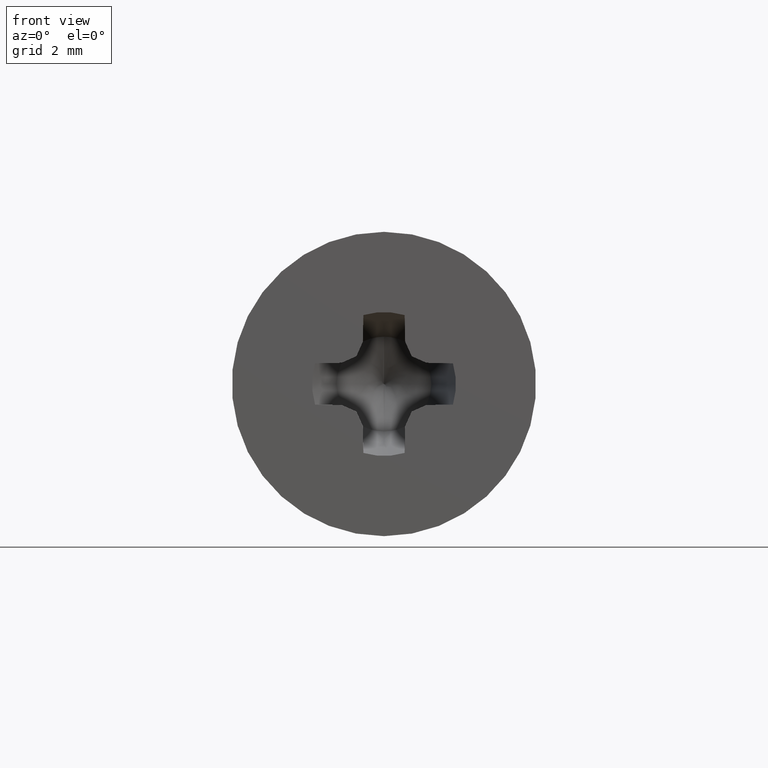
[diagram: clean part render]
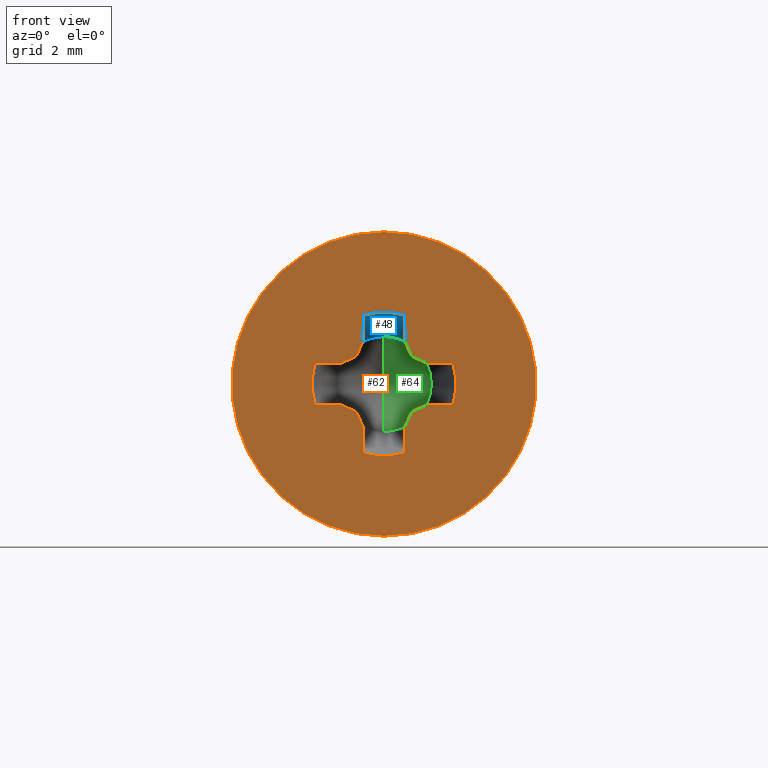
[diagram: same view with three faces highlighted in distinct colors, each labeled with its STEP entity id]
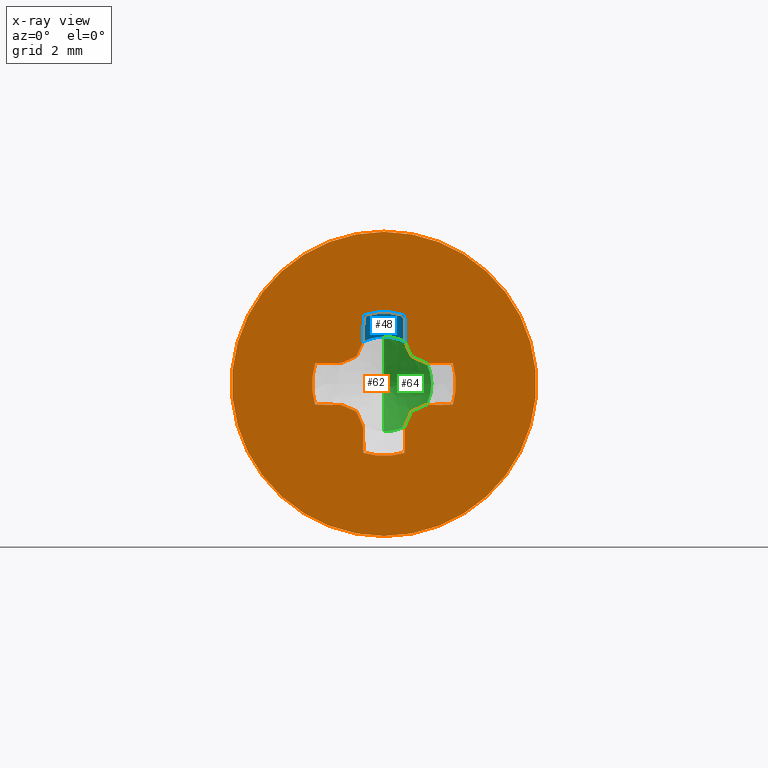
[diagram: x-ray of the same camera — body ghosted, the three highlighted faces saturated]
A machine part, front view with three faces highlighted in distinct colors.
The next image is the same camera in x-ray (body ghosted, the three faces saturated) — at least one of them is partly hidden behind the body in this view.
Their STEP definitions:

[orange] entity #62 — the highlighted planar face has unit normal (-0, 1, 0).
#62=ADVANCED_FACE('',(#291,#292),#290,.F.);
#290=PLANE('',#483);
#291=FACE_OUTER_BOUND('',#484,.T.);
#292=FACE_BOUND('',#485,.T.);
#480=CARTESIAN_POINT('',(-5.71576766498E+00,-7.00000000000E-01,-3.57500000000E+00));
#481=DIRECTION('',(-0.00000000000E+00,1.00000000000E+00,0.00000000000E+00));
#482=DIRECTION('',(0.00000000000E+00,-0.00000000000E+00,1.00000000000E+00));
#483=AXIS2_PLACEMENT_3D('',#480,#481,#482);
#484=EDGE_LOOP('',(#608,#609));
#485=EDGE_LOOP('',(#610,#611,#612,#613,#614,#615,#616,#617,#618,#619,#620,#621,#622,#623,#624,#625,#626,#627,#628,#629));
#608=ORIENTED_EDGE('',*,*,#724,.T.);
#609=ORIENTED_EDGE('',*,*,#725,.T.);
#610=ORIENTED_EDGE('',*,*,#696,.F.);
#611=ORIENTED_EDGE('',*,*,#699,.F.);
#612=ORIENTED_EDGE('',*,*,#703,.F.);
#613=ORIENTED_EDGE('',*,*,#706,.F.);
#614=ORIENTED_EDGE('',*,*,#707,.F.);
#615=ORIENTED_EDGE('',*,*,#692,.F.);
#616=ORIENTED_EDGE('',*,*,#708,.F.);
#617=ORIENTED_EDGE('',*,*,#712,.F.);
#618=ORIENTED_EDGE('',*,*,#714,.F.);
#619=ORIENTED_EDGE('',*,*,#666,.F.);
#620=ORIENTED_EDGE('',*,*,#683,.F.);
#621=ORIENTED_EDGE('',*,*,#675,.F.);
#622=ORIENTED_EDGE('',*,*,#679,.F.);
#623=ORIENTED_EDGE('',*,*,#672,.F.);
#624=ORIENTED_EDGE('',*,*,#674,.F.);
#625=ORIENTED_EDGE('',*,*,#687,.F.);
#626=ORIENTED_EDGE('',*,*,#680,.F.);
#627=ORIENTED_EDGE('',*,*,#719,.F.);
#628=ORIENTED_EDGE('',*,*,#717,.F.);
#629=ORIENTED_EDGE('',*,*,#698,.F.);
#666=EDGE_CURVE('',#740,#733,#747,.T.);
#672=EDGE_CURVE('',#782,#768,#789,.T.);
#674=EDGE_CURVE('',#795,#782,#802,.T.);
#675=EDGE_CURVE('',#808,#809,#810,.T.);
#679=EDGE_CURVE('',#768,#808,#835,.T.);
#680=EDGE_CURVE('',#841,#842,#843,.T.);
#683=EDGE_CURVE('',#809,#740,#862,.T.);
#687=EDGE_CURVE('',#842,#795,#887,.T.);
#692=EDGE_CURVE('',#915,#894,#922,.T.);
#696=EDGE_CURVE('',#943,#929,#950,.T.);
#698=EDGE_CURVE('',#929,#956,#963,.T.);
#699=EDGE_CURVE('',#969,#943,#970,.T.);
#703=EDGE_CURVE('',#989,#969,#996,.T.);
#706=EDGE_CURVE('',#1008,#989,#1015,.T.);
#707=EDGE_CURVE('',#894,#1008,#1021,.T.);
#708=EDGE_CURVE('',#1027,#915,#1028,.T.);
#712=EDGE_CURVE('',#1047,#1027,#1054,.T.);
#714=EDGE_CURVE('',#733,#1047,#1066,.T.);
#717=EDGE_CURVE('',#956,#1073,#1086,.T.);
#719=EDGE_CURVE('',#1073,#841,#1098,.T.);
#724=EDGE_CURVE('',#1132,#1133,#1134,.T.);
#725=EDGE_CURVE('',#1133,#1132,#1140,.T.);
#733=VERTEX_POINT('',#1184);
#740=VERTEX_POINT('',#1188);
#747=LINE('',#1193,#1194);
#768=VERTEX_POINT('',#1207);
#782=VERTEX_POINT('',#1216);
#789=LINE('',#1220,#1221);
#795=VERTEX_POINT('',#1223);
#802=LINE('',#1228,#1229);
#808=VERTEX_POINT('',#1231);
#809=VERTEX_POINT('',#1232);
#810=LINE('',#1233,#1234);
#835=LINE('',#1248,#1249);
#841=VERTEX_POINT('',#1251);
#842=VERTEX_POINT('',#1252);
#843=LINE('',#1253,#1254);
#862=CIRCLE('',#1267,1.30000000000E+00);
#887=CIRCLE('',#1284,1.30000000000E+00);
#894=VERTEX_POINT('',#1286);
#915=VERTEX_POINT('',#1301);
#922=CIRCLE('',#1309,1.30000000000E+00);
#929=VERTEX_POINT('',#1311);
#943=VERTEX_POINT('',#1321);
#950=CIRCLE('',#1329,1.30000000000E+00);
#956=VERTEX_POINT('',#1330);
#963=LINE('',#1334,#1335);
#969=VERTEX_POINT('',#1337);
#970=LINE('',#1338,#1339);
#989=VERTEX_POINT('',#1349);
#996=LINE('',#1353,#1354);
#1008=VERTEX_POINT('',#1360);
#1015=LINE('',#1364,#1365);
#1021=LINE('',#1367,#1368);
#1027=VERTEX_POINT('',#1370);
#1028=LINE('',#1371,#1372);
#1047=VERTEX_POINT('',#1382);
#1054=LINE('',#1386,#1387);
#1066=LINE('',#1393,#1394);
#1073=VERTEX_POINT('',#1397);
#1086=LINE('',#1405,#1406);
#1098=LINE('',#1412,#1413);
#1132=VERTEX_POINT('',#1435);
#1133=VERTEX_POINT('',#1436);
#1134=CIRCLE('',#1440,2.75000000000E+00);
#1140=CIRCLE('',#1444,2.75000000000E+00);
#1184=CARTESIAN_POINT('',(-7.65735392644E-01,-7.00000000000E-01,-3.81326433417E-01));
#1188=CARTESIAN_POINT('',(-1.24535328831E+00,-7.00000000000E-01,-3.72954671907E-01));
#1193=CARTESIAN_POINT('',(-1.24535328831E+00,-7.00000000000E-01,-3.72954671907E-01));
#1194=VECTOR('',#1195,4.79690954921E-01);
#1195=DIRECTION('',(9.99847695156E-01,0.00000000000E+00,-1.74524064372E-02));
#1207=CARTESIAN_POINT('',(-4.99750525934E-01,-7.00000000000E-01,4.99750525934E-01));
#1216=CARTESIAN_POINT('',(-3.81326433417E-01,-7.00000000000E-01,7.65735392643E-01));
#1220=CARTESIAN_POINT('',(-3.81326433417E-01,-7.00000000000E-01,7.65735392643E-01));
#1221=VECTOR('',#1222,2.91156684634E-01);
#1222=DIRECTION('',(-4.06736643076E-01,0.00000000000E+00,-9.13545457643E-01));
#1223=CARTESIAN_POINT('',(-3.72954671907E-01,-7.00000000000E-01,1.24535328831E+00));
#1228=CARTESIAN_POINT('',(-3.72954671907E-01,-7.00000000000E-01,1.24535328831E+00));
#1229=VECTOR('',#1230,4.79690954922E-01);
#1230=DIRECTION('',(-1.74524064378E-02,0.00000000000E+00,-9.99847695156E-01));
#1231=CARTESIAN_POINT('',(-7.65735392644E-01,-7.00000000000E-01,3.81326433417E-01));
#1232=CARTESIAN_POINT('',(-1.24535328831E+00,-7.00000000000E-01,3.72954671907E-01));
#1233=CARTESIAN_POINT('',(-7.65735392644E-01,-7.00000000000E-01,3.81326433417E-01));
#1234=VECTOR('',#1235,4.79690954921E-01);
#1235=DIRECTION('',(-9.99847695156E-01,0.00000000000E+00,-1.74524064373E-02));
#1248=CARTESIAN_POINT('',(-4.99750525934E-01,-7.00000000000E-01,4.99750525934E-01));
#1249=VECTOR('',#1250,2.91156684634E-01);
#1250=DIRECTION('',(-9.13545457643E-01,0.00000000000E+00,-4.06736643075E-01));
#1251=CARTESIAN_POINT('',(3.81326433417E-01,-7.00000000000E-01,7.65735392643E-01));
#1252=CARTESIAN_POINT('',(3.72954671908E-01,-7.00000000000E-01,1.24535328831E+00));
#1253=CARTESIAN_POINT('',(3.81326433417E-01,-7.00000000000E-01,7.65735392643E-01));
#1254=VECTOR('',#1255,4.79690954922E-01);
#1255=DIRECTION('',(-1.74524064372E-02,0.00000000000E+00,9.99847695156E-01));
#1264=CARTESIAN_POINT('',(0.00000000000E+00,-7.00000000000E-01,0.00000000000E+00));
#1265=DIRECTION('',(0.00000000000E+00,-1.00000000000E+00,0.00000000000E+00));
#1266=DIRECTION('',(-0.00000000000E+00,-0.00000000000E+00,1.00000000000E+00));
#1267=AXIS2_PLACEMENT_3D('',#1264,#1265,#1266);
#1281=CARTESIAN_POINT('',(0.00000000000E+00,-7.00000000000E-01,0.00000000000E+00));
#1282=DIRECTION('',(0.00000000000E+00,-1.00000000000E+00,0.00000000000E+00));
#1283=DIRECTION('',(2.86888209160E-01,0.00000000000E+00,9.57964067930E-01));
#1284=AXIS2_PLACEMENT_3D('',#1281,#1282,#1283);
#1286=CARTESIAN_POINT('',(3.72954671907E-01,-7.00000000000E-01,-1.24535328831E+00));
#1301=CARTESIAN_POINT('',(-3.72954671907E-01,-7.00000000000E-01,-1.24535328831E+00));
#1306=CARTESIAN_POINT('',(0.00000000000E+00,-7.00000000000E-01,0.00000000000E+00));
#1307=DIRECTION('',(0.00000000000E+00,-1.00000000000E+00,0.00000000000E+00));
#1308=DIRECTION('',(-0.00000000000E+00,-0.00000000000E+00,1.00000000000E+00));
#1309=AXIS2_PLACEMENT_3D('',#1306,#1307,#1308);
#1311=CARTESIAN_POINT('',(1.24535328831E+00,-7.00000000000E-01,3.72954671907E-01));
#1321=CARTESIAN_POINT('',(1.24535328831E+00,-7.00000000000E-01,-3.72954671907E-01));
#1326=CARTESIAN_POINT('',(0.00000000000E+00,-7.00000000000E-01,0.00000000000E+00));
#1327=DIRECTION('',(0.00000000000E+00,-1.00000000000E+00,0.00000000000E+00));
#1328=DIRECTION('',(-0.00000000000E+00,-0.00000000000E+00,1.00000000000E+00));
#1329=AXIS2_PLACEMENT_3D('',#1326,#1327,#1328);
#1330=CARTESIAN_POINT('',(7.65735392644E-01,-7.00000000000E-01,3.81326433417E-01));
#1334=CARTESIAN_POINT('',(1.24535328831E+00,-7.00000000000E-01,3.72954671907E-01));
#1335=VECTOR('',#1336,4.79690954921E-01);
#1336=DIRECTION('',(-9.99847695156E-01,0.00000000000E+00,1.74524064368E-02));
#1337=CARTESIAN_POINT('',(7.65735392644E-01,-7.00000000000E-01,-3.81326433417E-01));
#1338=CARTESIAN_POINT('',(7.65735392644E-01,-7.00000000000E-01,-3.81326433417E-01));
#1339=VECTOR('',#1340,4.79690954921E-01);
#1340=DIRECTION('',(9.99847695156E-01,0.00000000000E+00,1.74524064373E-02));
#1349=CARTESIAN_POINT('',(4.99750525934E-01,-7.00000000000E-01,-4.99750525934E-01));
#1353=CARTESIAN_POINT('',(4.99750525934E-01,-7.00000000000E-01,-4.99750525934E-01));
#1354=VECTOR('',#1355,2.91156684634E-01);
#1355=DIRECTION('',(9.13545457643E-01,0.00000000000E+00,4.06736643076E-01));
#1360=CARTESIAN_POINT('',(3.81326433417E-01,-7.00000000000E-01,-7.65735392644E-01));
#1364=CARTESIAN_POINT('',(3.81326433417E-01,-7.00000000000E-01,-7.65735392644E-01));
#1365=VECTOR('',#1366,2.91156684634E-01);
#1366=DIRECTION('',(4.06736643076E-01,0.00000000000E+00,9.13545457642E-01));
#1367=CARTESIAN_POINT('',(3.72954671907E-01,-7.00000000000E-01,-1.24535328831E+00));
#1368=VECTOR('',#1369,4.79690954921E-01);
#1369=DIRECTION('',(1.74524064372E-02,0.00000000000E+00,9.99847695156E-01));
#1370=CARTESIAN_POINT('',(-3.81326433417E-01,-7.00000000000E-01,-7.65735392644E-01));
#1371=CARTESIAN_POINT('',(-3.81326433417E-01,-7.00000000000E-01,-7.65735392644E-01));
#1372=VECTOR('',#1373,4.79690954922E-01);
#1373=DIRECTION('',(1.74524064372E-02,0.00000000000E+00,-9.99847695156E-01));
#1382=CARTESIAN_POINT('',(-4.99750525934E-01,-7.00000000000E-01,-4.99750525934E-01));
#1386=CARTESIAN_POINT('',(-4.99750525934E-01,-7.00000000000E-01,-4.99750525934E-01));
#1387=VECTOR('',#1388,2.91156684634E-01);
#1388=DIRECTION('',(4.06736643076E-01,0.00000000000E+00,-9.13545457643E-01));
#1393=CARTESIAN_POINT('',(-7.65735392644E-01,-7.00000000000E-01,-3.81326433417E-01));
#1394=VECTOR('',#1395,2.91156684634E-01);
#1395=DIRECTION('',(9.13545457643E-01,0.00000000000E+00,-4.06736643076E-01));
#1397=CARTESIAN_POINT('',(4.99750525934E-01,-7.00000000000E-01,4.99750525934E-01));
#1405=CARTESIAN_POINT('',(7.65735392644E-01,-7.00000000000E-01,3.81326433417E-01));
#1406=VECTOR('',#1407,2.91156684634E-01);
#1407=DIRECTION('',(-9.13545457643E-01,0.00000000000E+00,4.06736643075E-01));
#1412=CARTESIAN_POINT('',(4.99750525934E-01,-7.00000000000E-01,4.99750525934E-01));
#1413=VECTOR('',#1414,2.91156684634E-01);
#1414=DIRECTION('',(-4.06736643076E-01,0.00000000000E+00,9.13545457643E-01));
#1435=CARTESIAN_POINT('',(0.00000000000E+00,-7.00000000000E-01,-2.75000000000E+00));
#1436=CARTESIAN_POINT('',(1.48029736617E-16,-7.00000000000E-01,2.75000000000E+00));
#1437=CARTESIAN_POINT('',(0.00000000000E+00,-7.00000000000E-01,0.00000000000E+00));
#1438=DIRECTION('',(0.00000000000E+00,-1.00000000000E+00,-0.00000000000E+00));
#1439=DIRECTION('',(-1.22460635382E-16,0.00000000000E+00,-1.00000000000E+00));
#1440=AXIS2_PLACEMENT_3D('',#1437,#1438,#1439);
#1441=CARTESIAN_POINT('',(0.00000000000E+00,-7.00000000000E-01,0.00000000000E+00));
#1442=DIRECTION('',(0.00000000000E+00,-1.00000000000E+00,-0.00000000000E+00));
#1443=DIRECTION('',(-1.22460635382E-16,0.00000000000E+00,-1.00000000000E+00));
#1444=AXIS2_PLACEMENT_3D('',#1441,#1442,#1443);

[blue] entity #48 — the highlighted face is a freeform B-spline surface patch.
#48=ADVANCED_FACE('',(#150),#149,.F.);
#149=( BOUNDED_SURFACE() B_SPLINE_SURFACE( 2,1,((#403,#404),(#405,#406),(#407,#408)), .UNSPECIFIED.,.F.,.F.,.F.) B_SPLINE_SURFACE_WITH_KNOTS((3,3),(2,2),(0.00000000000E+00,1.00000000000E+00),(0.00000000000E+00,1.00000000000E+00), .UNSPECIFIED. ) GEOMETRIC_REPRESENTATION_ITEM() RATIONAL_B_SPLINE_SURFACE(((1.00000000000E+00,1.00000000000E+00),(8.94749471779E-01,8.94749471779E-01),(1.00000000000E+00,1.00000000000E+00))) REPRESENTATION_ITEM('') SURFACE() );
#150=FACE_OUTER_BOUND('',#409,.T.);
#403=CARTESIAN_POINT('',(3.81921402533E-01,2.00126283588E-01,7.65103363488E-01));
#404=CARTESIAN_POINT('',(5.80745063328E-01,-7.00607308886E-01,1.16340691654E+00));
#405=CARTESIAN_POINT('',(5.91765175733E-05,2.00126283588E-01,9.55719904852E-01));
#406=CARTESIAN_POINT('',(8.99830965684E-05,-7.00607308886E-01,1.45325612282E+00));
#407=CARTESIAN_POINT('',(-3.81826651861E-01,2.00126283588E-01,7.65150653442E-01));
#408=CARTESIAN_POINT('',(-5.80600986602E-01,-7.00607308886E-01,1.16347882507E+00));
#409=EDGE_LOOP('',(#554,#555,#556,#557,#558));
#554=ORIENTED_EDGE('',*,*,#673,.F.);
#555=ORIENTED_EDGE('',*,*,#685,.F.);
#556=ORIENTED_EDGE('',*,*,#686,.F.);
#557=ORIENTED_EDGE('',*,*,#681,.F.);
#558=ORIENTED_EDGE('',*,*,#687,.T.);
#673=EDGE_CURVE('',#775,#795,#796,.T.);
#681=EDGE_CURVE('',#842,#849,#850,.T.);
#685=EDGE_CURVE('',#874,#775,#875,.T.);
#686=EDGE_CURVE('',#849,#874,#881,.T.);
#687=EDGE_CURVE('',#842,#795,#887,.T.);
#775=VERTEX_POINT('',#1211);
#795=VERTEX_POINT('',#1223);
#796=(BOUNDED_CURVE() B_SPLINE_CURVE(3,(#1224,#1225,#1226,#1227),.UNSPECIFIED.,.F.,.F.) B_SPLINE_CURVE_WITH_KNOTS((4,4),(2.28899350122E-07,1.01965903334E-03),.UNSPECIFIED.) CURVE() GEOMETRIC_REPRESENTATION_ITEM() RATIONAL_B_SPLINE_CURVE((1.00000000000E+00,1.00000000000E+00,1.00000000000E+00,1.00000000000E+00)) REPRESENTATION_ITEM('') );
#842=VERTEX_POINT('',#1252);
#849=VERTEX_POINT('',#1256);
#850=(BOUNDED_CURVE() B_SPLINE_CURVE(3,(#1257,#1258,#1259,#1260),.UNSPECIFIED.,.F.,.F.) B_SPLINE_CURVE_WITH_KNOTS((4,4),(2.25290084571E-07,1.01965542407E-03),.UNSPECIFIED.) CURVE() GEOMETRIC_REPRESENTATION_ITEM() RATIONAL_B_SPLINE_CURVE((1.00000000000E+00,1.00000000000E+00,1.00000000000E+00,1.00000000000E+00)) REPRESENTATION_ITEM('') );
#874=VERTEX_POINT('',#1272);
#875=CIRCLE('',#1276,8.55430032422E-01);
#881=CIRCLE('',#1280,8.55430032422E-01);
#887=CIRCLE('',#1284,1.30000000000E+00);
#1211=CARTESIAN_POINT('',(-3.81326433417E-01,1.99518974701E-01,7.65735392643E-01));
#1223=CARTESIAN_POINT('',(-3.72954671907E-01,-7.00000000000E-01,1.24535328831E+00));
#1224=CARTESIAN_POINT('',(-3.81326433417E-01,1.99518974701E-01,7.65735392643E-01));
#1225=CARTESIAN_POINT('',(-3.78439931839E-01,-9.73899157988E-02,9.31102957301E-01));
#1226=CARTESIAN_POINT('',(-3.75685547962E-01,-3.98335804523E-01,1.08890150392E+00));
#1227=CARTESIAN_POINT('',(-3.72954671907E-01,-7.00000000000E-01,1.24535328831E+00));
#1252=CARTESIAN_POINT('',(3.72954671908E-01,-7.00000000000E-01,1.24535328831E+00));
#1256=CARTESIAN_POINT('',(3.81326433417E-01,1.99518974701E-01,7.65735392643E-01));
#1257=CARTESIAN_POINT('',(3.72954671908E-01,-7.00000000000E-01,1.24535328831E+00));
#1258=CARTESIAN_POINT('',(3.75685547962E-01,-3.98335804523E-01,1.08890150392E+00));
#1259=CARTESIAN_POINT('',(3.78439931839E-01,-9.73899157989E-02,9.31102957301E-01));
#1260=CARTESIAN_POINT('',(3.81326433417E-01,1.99518974701E-01,7.65735392643E-01));
#1272=CARTESIAN_POINT('',(9.68953410185E-14,1.99518974701E-01,8.55430032422E-01));
#1273=CARTESIAN_POINT('',(0.00000000000E+00,1.99518974701E-01,0.00000000000E+00));
#1274=DIRECTION('',(0.00000000000E+00,-1.00000000000E+00,0.00000000000E+00));
#1275=DIRECTION('',(4.45771622417E-01,0.00000000000E+00,8.95146725765E-01));
#1276=AXIS2_PLACEMENT_3D('',#1273,#1274,#1275);
#1277=CARTESIAN_POINT('',(0.00000000000E+00,1.99518974701E-01,0.00000000000E+00));
#1278=DIRECTION('',(0.00000000000E+00,-1.00000000000E+00,0.00000000000E+00));
#1279=DIRECTION('',(4.45771622417E-01,0.00000000000E+00,8.95146725765E-01));
#1280=AXIS2_PLACEMENT_3D('',#1277,#1278,#1279);
#1281=CARTESIAN_POINT('',(0.00000000000E+00,-7.00000000000E-01,0.00000000000E+00));
#1282=DIRECTION('',(0.00000000000E+00,-1.00000000000E+00,0.00000000000E+00));
#1283=DIRECTION('',(2.86888209160E-01,0.00000000000E+00,9.57964067930E-01));
#1284=AXIS2_PLACEMENT_3D('',#1281,#1282,#1283);

[green] entity #64 — the highlighted face is a freeform B-spline surface patch.
#64=ADVANCED_FACE('',(#312),#311,.F.);
#311=( BOUNDED_SURFACE() B_SPLINE_SURFACE( 2,1,((#497,#498),(#499,#500),(#501,#502),(#503,#504),(#505,#506)), .UNSPECIFIED.,.F.,.F.,.F.) B_SPLINE_SURFACE_WITH_KNOTS((3,2,3),(2,2),(0.00000000000E+00,5.00000000000E-01,1.00000000000E+00),(0.00000000000E+00,1.00000000000E+00), .UNSPECIFIED. ) GEOMETRIC_REPRESENTATION_ITEM() RATIONAL_B_SPLINE_SURFACE(((1.00000000000E+00,1.00000000000E+00),(7.07106781187E-01,7.07106781187E-01),(1.00000000000E+00,1.00000000000E+00),(7.07106781187E-01,7.07106781187E-01),(1.00000000000E+00,1.00000000000E+00))) REPRESENTATION_ITEM('') SURFACE() );
#312=FACE_OUTER_BOUND('',#507,.T.);
#497=CARTESIAN_POINT('',(0.00000000000E+00,6.54359191066E-01,0.00000000000E+00));
#498=CARTESIAN_POINT('',(1.48152963452E-16,1.11179883701E-02,-1.20976075351E+00));
#499=CARTESIAN_POINT('',(0.00000000000E+00,6.54359191066E-01,0.00000000000E+00));
#500=CARTESIAN_POINT('',(1.20976075351E+00,1.11179883701E-02,-1.20976075351E+00));
#501=CARTESIAN_POINT('',(0.00000000000E+00,6.54359191066E-01,0.00000000000E+00));
#502=CARTESIAN_POINT('',(1.20976075351E+00,1.11179883701E-02,7.40764817261E-17));
#503=CARTESIAN_POINT('',(0.00000000000E+00,6.54359191066E-01,0.00000000000E+00));
#504=CARTESIAN_POINT('',(1.20976075351E+00,1.11179883701E-02,1.20976075351E+00));
#505=CARTESIAN_POINT('',(0.00000000000E+00,6.54359191066E-01,0.00000000000E+00));
#506=CARTESIAN_POINT('',(0.00000000000E+00,1.11179883701E-02,1.20976075351E+00));
#507=EDGE_LOOP('',(#639,#640,#641,#642,#643,#644,#645,#646,#647));
#639=ORIENTED_EDGE('',*,*,#689,.T.);
#640=ORIENTED_EDGE('',*,*,#704,.F.);
#641=ORIENTED_EDGE('',*,*,#701,.F.);
#642=ORIENTED_EDGE('',*,*,#694,.T.);
#643=ORIENTED_EDGE('',*,*,#716,.F.);
#644=ORIENTED_EDGE('',*,*,#718,.F.);
#645=ORIENTED_EDGE('',*,*,#686,.T.);
#646=ORIENTED_EDGE('',*,*,#726,.F.);
#647=ORIENTED_EDGE('',*,*,#727,.T.);
#686=EDGE_CURVE('',#849,#874,#881,.T.);
#689=EDGE_CURVE('',#901,#893,#902,.T.);
#694=EDGE_CURVE('',#936,#928,#937,.T.);
#701=EDGE_CURVE('',#936,#982,#983,.T.);
#704=EDGE_CURVE('',#982,#893,#1002,.T.);
#716=EDGE_CURVE('',#1072,#928,#1080,.T.);
#718=EDGE_CURVE('',#849,#1072,#1092,.T.);
#726=EDGE_CURVE('',#1146,#874,#1147,.T.);
#727=EDGE_CURVE('',#1146,#901,#1153,.T.);
#849=VERTEX_POINT('',#1256);
#874=VERTEX_POINT('',#1272);
#881=CIRCLE('',#1280,8.55430032422E-01);
#893=VERTEX_POINT('',#1285);
#901=VERTEX_POINT('',#1291);
#902=CIRCLE('',#1295,8.55430032422E-01);
#928=VERTEX_POINT('',#1310);
#936=VERTEX_POINT('',#1316);
#937=CIRCLE('',#1320,8.55430032422E-01);
#982=VERTEX_POINT('',#1344);
#983=(BOUNDED_CURVE() B_SPLINE_CURVE(3,(#1345,#1346,#1347,#1348),.UNSPECIFIED.,.F.,.F.) B_SPLINE_CURVE_WITH_KNOTS((4,4),(3.80303712241E-04,6.81608863542E-04),.UNSPECIFIED.) CURVE() GEOMETRIC_REPRESENTATION_ITEM() RATIONAL_B_SPLINE_CURVE((1.00000000000E+00,1.00000000000E+00,1.00000000000E+00,1.00000000000E+00)) REPRESENTATION_ITEM('') );
#1002=(BOUNDED_CURVE() B_SPLINE_CURVE(3,(#1356,#1357,#1358,#1359),.UNSPECIFIED.,.F.,.F.) B_SPLINE_CURVE_WITH_KNOTS((4,4),(3.55343745428E-04,6.54906046522E-04),.UNSPECIFIED.) CURVE() GEOMETRIC_REPRESENTATION_ITEM() RATIONAL_B_SPLINE_CURVE((1.00000000000E+00,1.00000000000E+00,1.00000000000E+00,1.00000000000E+00)) REPRESENTATION_ITEM('') );
#1072=VERTEX_POINT('',#1396);
#1080=(BOUNDED_CURVE() B_SPLINE_CURVE(3,(#1401,#1402,#1403,#1404),.UNSPECIFIED.,.F.,.F.) B_SPLINE_CURVE_WITH_KNOTS((4,4),(3.55343745428E-04,6.54906046522E-04),.UNSPECIFIED.) CURVE() GEOMETRIC_REPRESENTATION_ITEM() RATIONAL_B_SPLINE_CURVE((1.00000000000E+00,1.00000000000E+00,1.00000000000E+00,1.00000000000E+00)) REPRESENTATION_ITEM('') );
#1092=(BOUNDED_CURVE() B_SPLINE_CURVE(3,(#1408,#1409,#1410,#1411),.UNSPECIFIED.,.F.,.F.) B_SPLINE_CURVE_WITH_KNOTS((4,4),(3.80303712241E-04,6.81608863542E-04),.UNSPECIFIED.) CURVE() GEOMETRIC_REPRESENTATION_ITEM() RATIONAL_B_SPLINE_CURVE((1.00000000000E+00,1.00000000000E+00,1.00000000000E+00,1.00000000000E+00)) REPRESENTATION_ITEM('') );
#1146=VERTEX_POINT('',#1445);
#1147=(BOUNDED_CURVE() B_SPLINE_CURVE(1,(#1446,#1447),.UNSPECIFIED.,.F.,.F.) B_SPLINE_CURVE_WITH_KNOTS((2,2),(0.00000000000E+00,7.07106769086E-01),.UNSPECIFIED.) CURVE() GEOMETRIC_REPRESENTATION_ITEM() RATIONAL_B_SPLINE_CURVE((1.00000000000E+00,1.00000000000E+00)) REPRESENTATION_ITEM('') );
#1153=(BOUNDED_CURVE() B_SPLINE_CURVE(1,(#1448,#1449),.UNSPECIFIED.,.F.,.F.) B_SPLINE_CURVE_WITH_KNOTS((2,2),(0.00000000000E+00,7.07106764089E-01),.UNSPECIFIED.) CURVE() GEOMETRIC_REPRESENTATION_ITEM() RATIONAL_B_SPLINE_CURVE((7.50000000000E-01,7.50000000000E-01)) REPRESENTATION_ITEM('') );
#1256=CARTESIAN_POINT('',(3.81326433417E-01,1.99518974701E-01,7.65735392643E-01));
#1272=CARTESIAN_POINT('',(9.68953410185E-14,1.99518974701E-01,8.55430032422E-01));
#1277=CARTESIAN_POINT('',(0.00000000000E+00,1.99518974701E-01,0.00000000000E+00));
#1278=DIRECTION('',(0.00000000000E+00,-1.00000000000E+00,0.00000000000E+00));
#1279=DIRECTION('',(4.45771622417E-01,0.00000000000E+00,8.95146725765E-01));
#1280=AXIS2_PLACEMENT_3D('',#1277,#1278,#1279);
#1285=CARTESIAN_POINT('',(3.81326433417E-01,1.99518974701E-01,-7.65735392644E-01));
#1291=CARTESIAN_POINT('',(1.44300971262E-08,1.99518974701E-01,-8.55430032422E-01));
#1292=CARTESIAN_POINT('',(0.00000000000E+00,1.99518974701E-01,0.00000000000E+00));
#1293=DIRECTION('',(0.00000000000E+00,-1.00000000000E+00,0.00000000000E+00));
#1294=DIRECTION('',(-0.00000000000E+00,-0.00000000000E+00,1.00000000000E+00));
#1295=AXIS2_PLACEMENT_3D('',#1292,#1293,#1294);
#1310=CARTESIAN_POINT('',(7.65735392644E-01,1.99518974701E-01,3.81326433417E-01));
#1316=CARTESIAN_POINT('',(7.65735392643E-01,1.99518974701E-01,-3.81326433417E-01));
#1317=CARTESIAN_POINT('',(0.00000000000E+00,1.99518974701E-01,0.00000000000E+00));
#1318=DIRECTION('',(0.00000000000E+00,-1.00000000000E+00,0.00000000000E+00));
#1319=DIRECTION('',(-0.00000000000E+00,-0.00000000000E+00,1.00000000000E+00));
#1320=AXIS2_PLACEMENT_3D('',#1317,#1318,#1319);
#1344=CARTESIAN_POINT('',(4.99750525934E-01,2.78571438514E-01,-4.99750525934E-01));
#1345=CARTESIAN_POINT('',(7.65735392643E-01,1.99518974701E-01,-3.81326433417E-01));
#1346=CARTESIAN_POINT('',(6.78820439187E-01,2.31714830436E-01,-4.20023463878E-01));
#1347=CARTESIAN_POINT('',(5.90622504417E-01,2.59617330682E-01,-4.59291714423E-01));
#1348=CARTESIAN_POINT('',(4.99750525934E-01,2.78571438514E-01,-4.99750525934E-01));
#1356=CARTESIAN_POINT('',(4.99750525934E-01,2.78571438514E-01,-4.99750525934E-01));
#1357=CARTESIAN_POINT('',(4.59661902178E-01,2.59790755910E-01,-5.89791049105E-01));
#1358=CARTESIAN_POINT('',(4.20037344964E-01,2.31726379474E-01,-6.78789261757E-01));
#1359=CARTESIAN_POINT('',(3.81326433417E-01,1.99518974701E-01,-7.65735392644E-01));
#1396=CARTESIAN_POINT('',(4.99750525934E-01,2.78571438514E-01,4.99750525934E-01));
#1401=CARTESIAN_POINT('',(4.99750525934E-01,2.78571438514E-01,4.99750525934E-01));
#1402=CARTESIAN_POINT('',(5.89791049105E-01,2.59790755910E-01,4.59661902178E-01));
#1403=CARTESIAN_POINT('',(6.78789261757E-01,2.31726379473E-01,4.20037344964E-01));
#1404=CARTESIAN_POINT('',(7.65735392644E-01,1.99518974701E-01,3.81326433417E-01));
#1408=CARTESIAN_POINT('',(3.81326433417E-01,1.99518974701E-01,7.65735392643E-01));
#1409=CARTESIAN_POINT('',(4.20023463878E-01,2.31714830436E-01,6.78820439187E-01));
#1410=CARTESIAN_POINT('',(4.59291714423E-01,2.59617330682E-01,5.90622504417E-01));
#1411=CARTESIAN_POINT('',(4.99750525934E-01,2.78571438514E-01,4.99750525934E-01));
#1445=CARTESIAN_POINT('',(0.00000000000E+00,6.54359191066E-01,0.00000000000E+00));
#1446=CARTESIAN_POINT('',(0.00000000000E+00,6.54359191066E-01,0.00000000000E+00));
#1447=CARTESIAN_POINT('',(-2.09513007005E-16,1.99518982485E-01,8.55430017783E-01));
#1448=CARTESIAN_POINT('',(0.00000000000E+00,6.54359191066E-01,0.00000000000E+00));
#1449=CARTESIAN_POINT('',(2.61682070120E-16,1.99518985699E-01,-8.55430011738E-01));